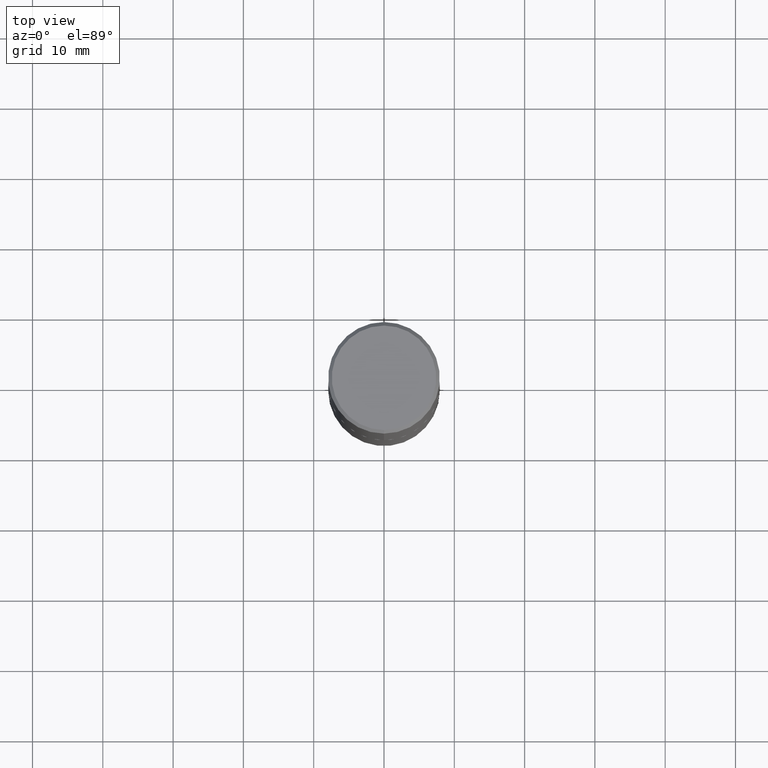
[diagram: clean part render]
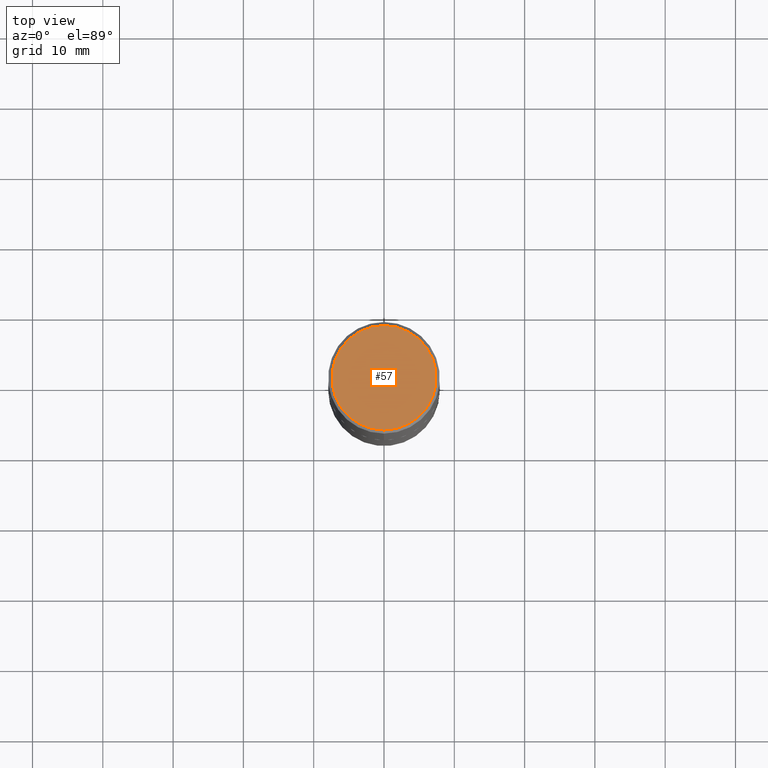
[diagram: same view with one face highlighted and labeled with its STEP entity id]
A machine part, top view. The second image highlights one B-rep face of the part: STEP entity #57.
In plain terms, the highlighted planar face has unit normal (0, -0, -1).
Its self-contained STEP definition (entity closure, byte-faithful):
#2 = DIRECTION ( 'NONE',  ( -6.982962677686265133E-15, -1.000000000000000000, 3.492364022149836753E-15 ) ) ;
#10 = CIRCLE ( 'NONE', #149, 0.2924999999999999822 ) ;
#13 = VERTEX_POINT ( 'NONE', #177 ) ;
#18 = EDGE_LOOP ( 'NONE', ( #384, #405 ) ) ;
#30 = CARTESIAN_POINT ( 'NONE',  ( -2.150299018297948745E-46, 3.071607443834507134E-32, 8.795209847407834549E-18 ) ) ;
#57 = ADVANCED_FACE ( 'NONE', ( #63 ), #325, .F. ) ;
#63 = FACE_OUTER_BOUND ( 'NONE', #18, .T. ) ;
#87 = DIRECTION ( 'NONE',  ( 6.982962677686265922E-15, 1.000000000000000000, -3.492364022149836358E-15 ) ) ;
#140 = AXIS2_PLACEMENT_3D ( 'NONE', #264, #391, #87 ) ;
#149 = AXIS2_PLACEMENT_3D ( 'NONE', #398, #303, #342 ) ;
#156 = CIRCLE ( 'NONE', #374, 0.2924999999999999822 ) ;
#177 = CARTESIAN_POINT ( 'NONE',  ( -2.075300644325887493E-15, -0.2924999999999999822, 1.030311686326234990E-15 ) ) ;
#264 = CARTESIAN_POINT ( 'NONE',  ( 2.042516583223232540E-15, 0.2924999999999999822, -1.017118871555123169E-15 ) ) ;
#266 = EDGE_CURVE ( 'NONE', #278, #13, #10, .T. ) ;
#278 = VERTEX_POINT ( 'NONE', #367 ) ;
#303 = DIRECTION ( 'NONE',  ( -2.444852431726452894E-29, 3.492364022149836358E-15, 1.000000000000000000 ) ) ;
#325 = PLANE ( 'NONE',  #140 ) ;
#342 = DIRECTION ( 'NONE',  ( -6.982962677686265133E-15, -1.000000000000000000, 3.492364022149836753E-15 ) ) ;
#362 = EDGE_CURVE ( 'NONE', #13, #278, #156, .T. ) ;
#367 = CARTESIAN_POINT ( 'NONE',  ( 2.112346210000095838E-15, 0.2924999999999999822, -1.012721266631419361E-15 ) ) ;
#371 = DIRECTION ( 'NONE',  ( -2.444852431726452894E-29, 3.492364022149836358E-15, 1.000000000000000000 ) ) ;
#374 = AXIS2_PLACEMENT_3D ( 'NONE', #30, #371, #2 ) ;
#384 = ORIENTED_EDGE ( 'NONE', *, *, #266, .T. ) ;
#391 = DIRECTION ( 'NONE',  ( 2.444852431726452333E-29, -3.492364022149836358E-15, -1.000000000000000000 ) ) ;
#398 = CARTESIAN_POINT ( 'NONE',  ( -2.150299018297948745E-46, 3.071607443834507134E-32, 8.795209847407834549E-18 ) ) ;
#405 = ORIENTED_EDGE ( 'NONE', *, *, #362, .T. ) ;